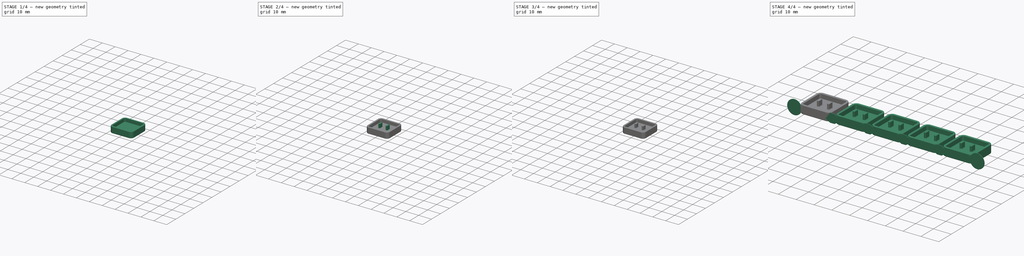
[diagram: build sequence overview — one tinted view per stage of 4, left to right]
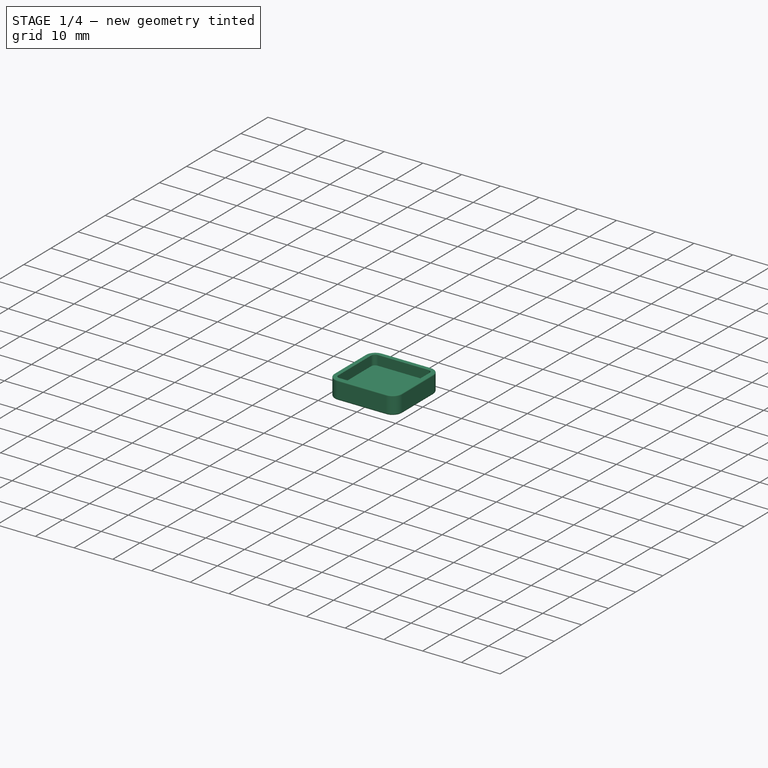
[diagram: stage 1 of 4 — iso view after this stage's code; geometry added in this stage tinted green]
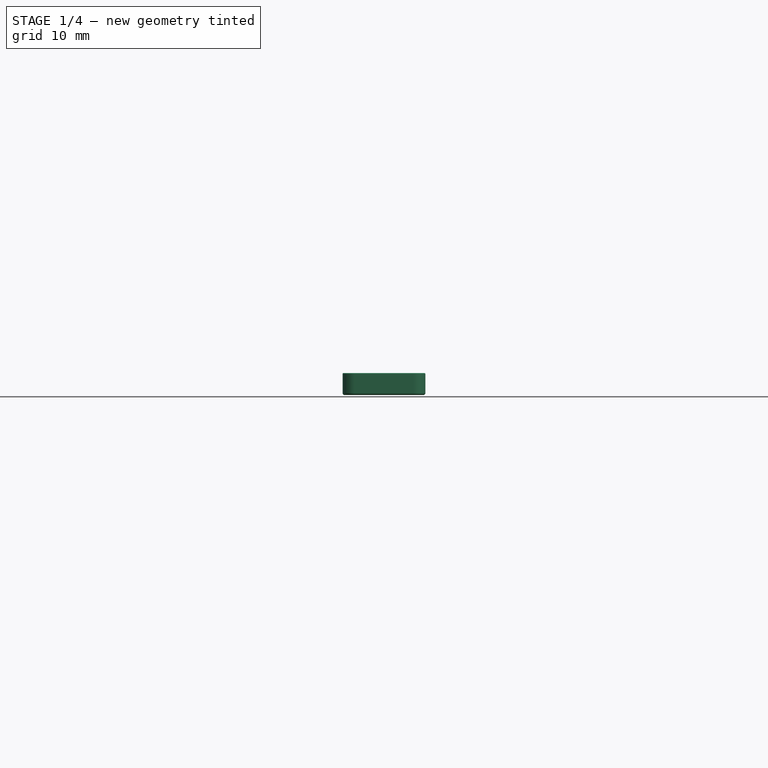
[diagram: stage 1 of 4 — front view after this stage's code; geometry added in this stage tinted green]
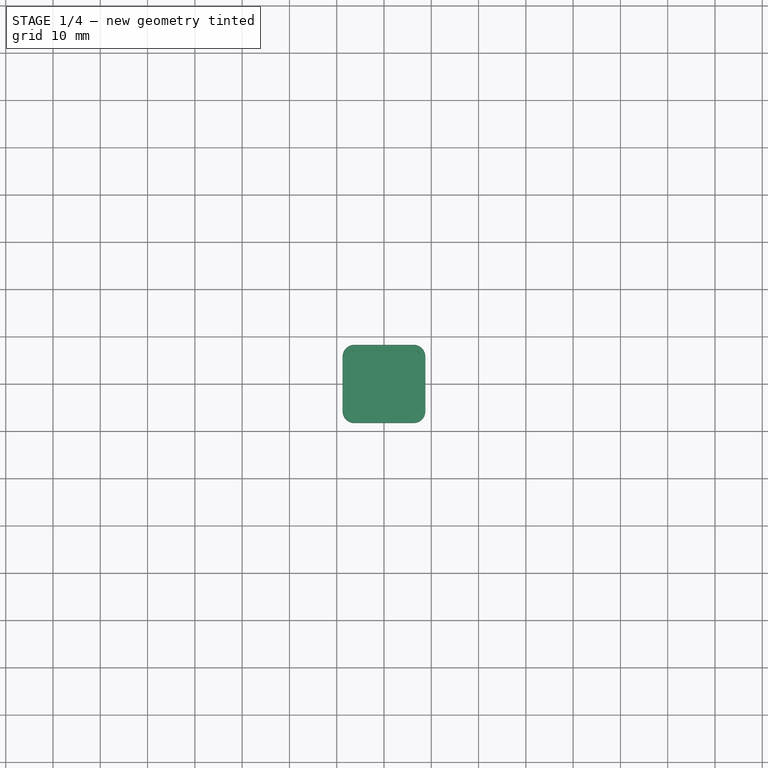
[diagram: stage 1 of 4 — top view after this stage's code; geometry added in this stage tinted green]
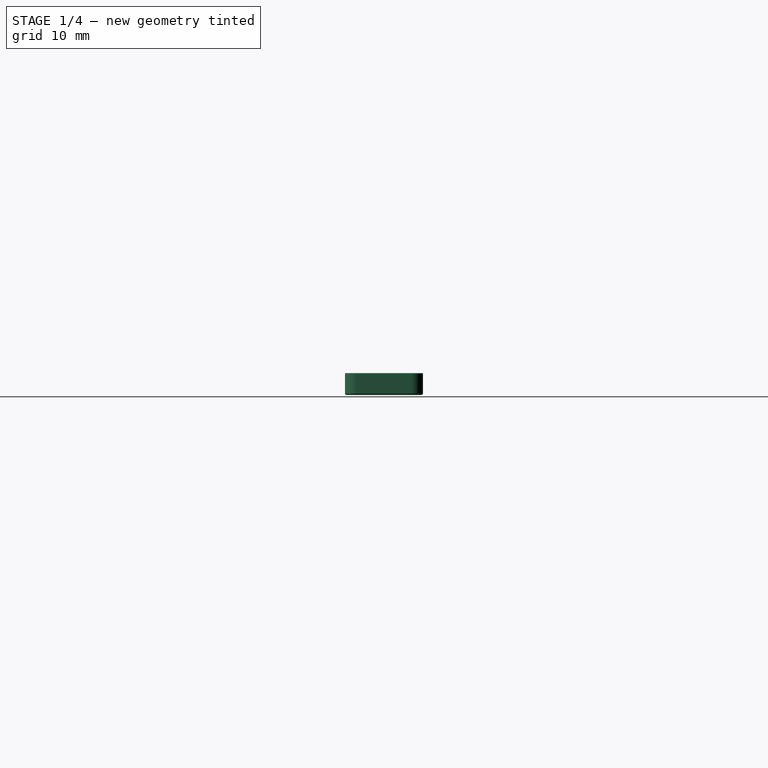
[diagram: stage 1 of 4 — right view after this stage's code; geometry added in this stage tinted green]
FCSTD DOCUMENT  (FreeCAD 1.0R39319 (Git))
Label: 1c_choc_x5
License: All rights reserved
LicenseURL: https://en.wikipedia.org/wiki/All_rights_reserved
objects: PartDesign::Fillet×7, Sketcher::SketchObject×6, PartDesign::Pad×5, PartDesign::Groove×1, PartDesign::LinearPattern×1, PartDesign::Body×1
note: 54 computed .brp shape members not serialized (recipe doc carries the construction recipe); baked Part::Feature solids carry a one-line shape summary decoded from their .brp

FEATURE [Sketcher::SketchObject] Sketch
  ArcFitTolerance = 1e-06
  AttachmentSupport = -> [XY_Plane]
  FullyConstrained = true
  MakeInternals = false
  MapMode = 5
  sketch-geometry (13):
    g0: LineSegment StartX=-6.25 StartY=-8.25 StartZ=0 EndX=6.25 EndY=-8.25 EndZ=0
    g1: LineSegment StartX=8.75 StartY=-5.75 StartZ=0 EndX=8.75 EndY=5.75 EndZ=0
    g2: LineSegment StartX=6.25 StartY=8.25 StartZ=0 EndX=-6.25 EndY=8.25 EndZ=0
    g3: LineSegment StartX=-8.75 StartY=5.75 StartZ=0 EndX=-8.75 EndY=-5.75 EndZ=0
    g4: GeomPoint [constr] X=0 Y=0 Z=0
    g5: ArcOfCircle CenterX=-6.25 CenterY=5.75 CenterZ=0 NormalX=0 NormalY=0 NormalZ=1 AngleXU=0 Radius=2.5 StartAngle=1.5708 EndAngle=3.14159
    g6: GeomPoint [constr] X=-8.75 Y=8.25 Z=0
    g7: ArcOfCircle CenterX=6.25 CenterY=5.75 CenterZ=0 NormalX=0 NormalY=0 NormalZ=1 AngleXU=0 Radius=2.5 StartAngle=3.664e-13 EndAngle=1.5708
    g8: GeomPoint [constr] X=8.75 Y=8.25 Z=0
    g9: ArcOfCircle CenterX=6.25 CenterY=-5.75 CenterZ=0 NormalX=0 NormalY=0 NormalZ=1 AngleXU=0 Radius=2.5 StartAngle=4.71239 EndAngle=6.28319
    g10: GeomPoint [constr] X=8.75 Y=-8.25 Z=0
    g11: ArcOfCircle CenterX=-6.25 CenterY=-5.75 CenterZ=0 NormalX=0 NormalY=0 NormalZ=1 AngleXU=0 Radius=2.5 StartAngle=3.14159 EndAngle=4.71239
    g12: GeomPoint [constr] X=-8.75 Y=-8.25 Z=0
  constraints (28):
    c: Horizontal(g0)
    c: Horizontal(g2)
    c: Vertical(g1)
    c: Vertical(g3)
    c: Symmetric(g8,g12,g4)
    c: Coincident(g4,g-1)
    c: DistanceX(g6,g8) = 17.5
    c: DistanceY(g12,g6) = 16.5
    c: PointOnObject(g6,g3)
    c: PointOnObject(g6,g2)
    c: Tangent(g3,g5) = -1.5708
    c: Tangent(g2,g5) = -1.5708
    c: PointOnObject(g8,g2)
    c: PointOnObject(g8,g1)
    c: Tangent(g2,g7) = -1.5708
    c: Tangent(g1,g7) = -1.5708
    c: PointOnObject(g10,g1)
    c: PointOnObject(g10,g0)
    c: Tangent(g1,g9) = -1.5708
    c: Tangent(g0,g9) = -1.5708
    c: PointOnObject(g12,g3)
    c: PointOnObject(g12,g0)
    c: Tangent(g3,g11) = -1.5708
    c: Tangent(g0,g11) = -1.5708
    c: Radius(g5) = 2.5
    c: Equal(g5,g7)
    c: Equal(g7,g9)
    c: Equal(g9,g11)
FEATURE [PartDesign::Pad] Pad
  Direction = (0,0,1)
  Length = 2.15
  Length2 = 10
  Profile = -> Sketch
  ReferenceAxis = -> Sketch [N_Axis]
  Refine = true
  Suppressed = false
  Type = 0
FEATURE [Sketcher::SketchObject] Sketch001
  ArcFitTolerance = 1e-06
  AttachmentSupport = -> [Pad]
  ExternalGeometry = -> [Pad]
  FullyConstrained = true
  MakeInternals = false
  MapMode = 5
  Placement = pos=(0,0,2.15) rot=(0,0,1;0rad)
  sketch-geometry (21):
    g0: LineSegment StartX=-8.75 StartY=-5.75 StartZ=0 EndX=-8.75 EndY=5.75 EndZ=0
    g1: LineSegment StartX=-6.25 StartY=8.25 StartZ=0 EndX=6.25 EndY=8.25 EndZ=0
    g2: LineSegment StartX=8.75 StartY=5.75 StartZ=0 EndX=8.75 EndY=-5.75 EndZ=0
    g3: LineSegment StartX=6.25 StartY=-8.25 StartZ=0 EndX=-6.25 EndY=-8.25 EndZ=0
    g4: ArcOfCircle CenterX=-6.25 CenterY=-5.75 CenterZ=0 NormalX=0 NormalY=0 NormalZ=1 AngleXU=0 Radius=2.5 StartAngle=3.14159 EndAngle=4.71239
    g5: ArcOfCircle CenterX=-6.25 CenterY=5.75 CenterZ=0 NormalX=0 NormalY=0 NormalZ=1 AngleXU=0 Radius=2.5 StartAngle=1.5708 EndAngle=3.14159
    g6: ArcOfCircle CenterX=6.25 CenterY=5.75 CenterZ=0 NormalX=0 NormalY=0 NormalZ=1 AngleXU=0 Radius=2.5 StartAngle=0 EndAngle=1.5708
    g7: ArcOfCircle CenterX=6.25 CenterY=-5.75 CenterZ=0 NormalX=0 NormalY=0 NormalZ=1 AngleXU=0 Radius=2.5 StartAngle=4.71239 EndAngle=6.28319
    g8: LineSegment StartX=-6.55 StartY=-7.05 StartZ=0 EndX=6.55 EndY=-7.05 EndZ=0
    g9: LineSegment StartX=7.55 StartY=-6.05 StartZ=0 EndX=7.55 EndY=6.05 EndZ=0
    g10: LineSegment StartX=6.55 StartY=7.05 StartZ=0 EndX=-6.55 EndY=7.05 EndZ=0
    g11: LineSegment StartX=-7.55 StartY=6.05 StartZ=0 EndX=-7.55 EndY=-6.05 EndZ=0
    g12: GeomPoint [constr] X=0 Y=0 Z=0
    g13: ArcOfCircle CenterX=-6.55 CenterY=6.05 CenterZ=0 NormalX=0 NormalY=0 NormalZ=1 AngleXU=0 Radius=1 StartAngle=1.5708 EndAngle=3.14159
    g14: GeomPoint [constr] X=-7.55 Y=7.05 Z=0
    g15: ArcOfCircle CenterX=6.55 CenterY=6.05 CenterZ=0 NormalX=0 NormalY=0 NormalZ=1 AngleXU=0 Radius=1 StartAngle=6e-16 EndAngle=1.5708
    g16: GeomPoint [constr] X=7.55 Y=7.05 Z=0
    g17: ArcOfCircle CenterX=6.55 CenterY=-6.05 CenterZ=0 NormalX=0 NormalY=0 NormalZ=1 AngleXU=0 Radius=1 StartAngle=4.71239 EndAngle=6.28319
    g18: GeomPoint [constr] X=7.55 Y=-7.05 Z=0
    g19: ArcOfCircle CenterX=-6.55 CenterY=-6.05 CenterZ=0 NormalX=0 NormalY=0 NormalZ=1 AngleXU=0 Radius=1 StartAngle=3.14159 EndAngle=4.71239
    g20: GeomPoint [constr] X=-7.55 Y=-7.05 Z=0
  constraints (44):
    c: Coincident(g0,g-10)
    c: Coincident(g0,g-3)
    c: Coincident(g1,g-4)
    c: Coincident(g1,g-5)
    c: Coincident(g2,g-6)
    c: Coincident(g2,g-7)
    c: Coincident(g3,g-8)
    c: Coincident(g3,g-9)
    c: Coincident(g4,g0)
    c: Coincident(g5,g1)
    c: Coincident(g6,g2)
    c: Coincident(g7,g3)
    c: Tangent(g5,g0) = 1.5708
    c: Tangent(g6,g1) = 1.5708
    c: Tangent(g7,g2) = 1.5708
    c: Tangent(g4,g3) = 1.5708
    c: Horizontal(g8)
    c: Horizontal(g10)
    c: Vertical(g9)
    c: Vertical(g11)
    c: Symmetric(g16,g20,g12)
    c: Coincident(g12,g-1)
    c: Distance(g16,g1) = 1.2
    c: Distance(g14,g0) = 1.2
    c: PointOnObject(g14,g11)
    c: PointOnObject(g14,g10)
    c: Tangent(g11,g13) = -1.5708
    c: Tangent(g10,g13) = -1.5708
    c: PointOnObject(g16,g10)
    c: PointOnObject(g16,g9)
    c: Tangent(g10,g15) = -1.5708
    c: Tangent(g9,g15) = -1.5708
    c: PointOnObject(g18,g9)
    c: PointOnObject(g18,g8)
    c: Tangent(g9,g17) = -1.5708
    c: Tangent(g8,g17) = -1.5708
    c: PointOnObject(g20,g8)
    c: PointOnObject(g20,g11)
    c: Tangent(g8,g19) = -1.5708
    c: Tangent(g11,g19) = -1.5708
    c: Equal(g13,g15)
    c: Equal(g15,g17)
    c: Equal(g17,g19)
    c: Radius(g13) = 1
FEATURE [PartDesign::Pad] Pad001
  BaseFeature = -> Pad
  Direction = (0,0,1)
  Length = 2.5
  Length2 = 10
  Profile = -> Sketch001
  ReferenceAxis = -> Sketch001 [N_Axis]
  Refine = true
  Suppressed = false
  Type = 0
FEATURE [PartDesign::Fillet] Fillet
  Base = -> Pad001 [Edge1]
  BaseFeature = -> Pad001
  Radius = 0.4
  Refine = true
  SupportTransform = false
  Suppressed = false
  UseAllEdges = false
FEATURE [PartDesign::Fillet] Fillet001
  Base = -> Fillet [Edge26]
  BaseFeature = -> Fillet
  Radius = 0.2
  Refine = true
  SupportTransform = false
  Suppressed = false
  UseAllEdges = false
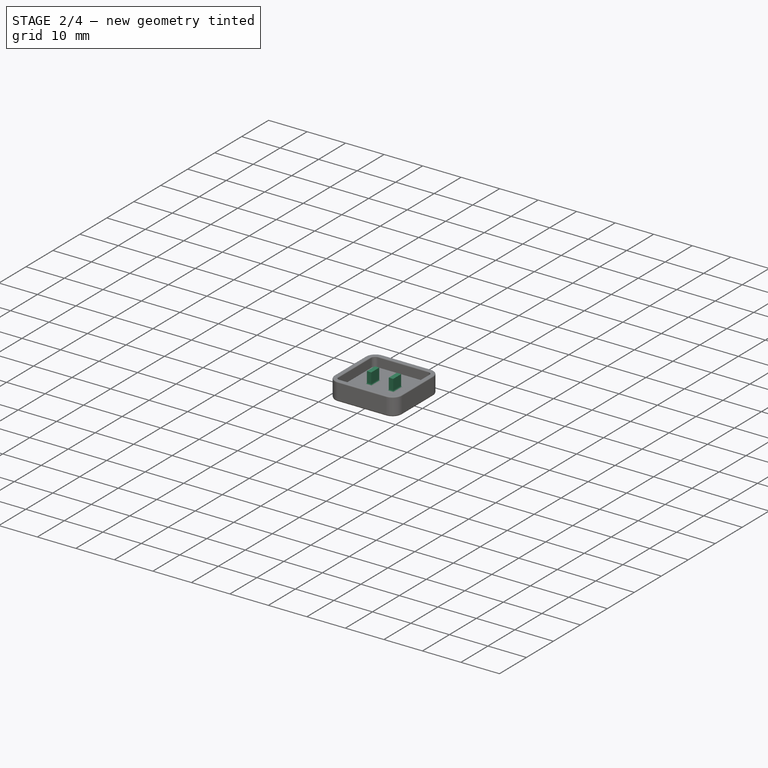
[diagram: stage 2 of 4 — iso view after this stage's code; geometry added in this stage tinted green]
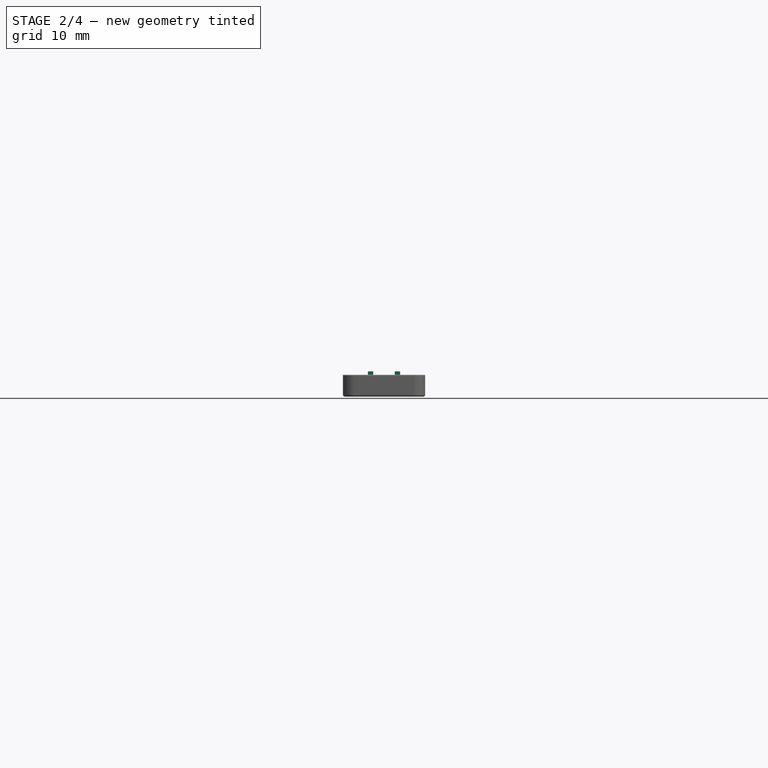
[diagram: stage 2 of 4 — front view after this stage's code; geometry added in this stage tinted green]
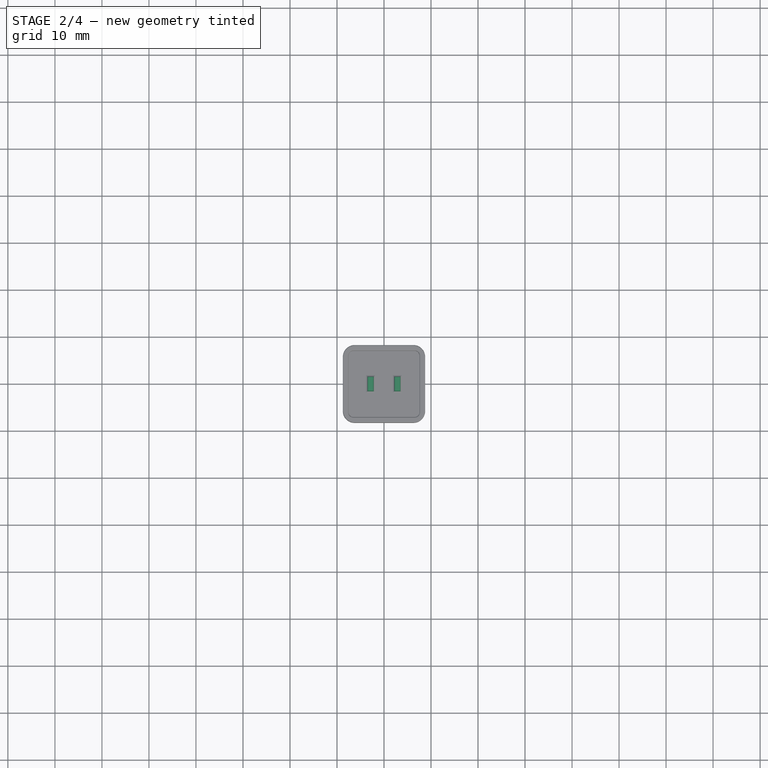
[diagram: stage 2 of 4 — top view after this stage's code; geometry added in this stage tinted green]
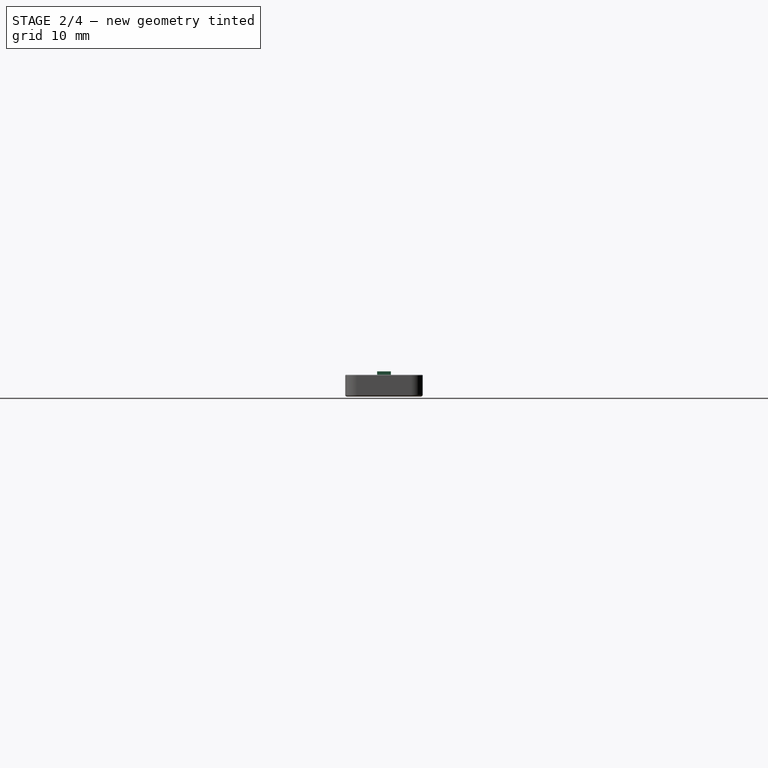
[diagram: stage 2 of 4 — right view after this stage's code; geometry added in this stage tinted green]
FEATURE [PartDesign::Fillet] Fillet002
  Base = -> Fillet001 [Edge30]
  BaseFeature = -> Fillet001
  Radius = 0.2
  Refine = true
  SupportTransform = false
  Suppressed = false
  UseAllEdges = false
FEATURE [Sketcher::SketchObject] Sketch002
  ArcFitTolerance = 1e-06
  AttachmentSupport = -> [Fillet002]
  ExternalGeometry = -> [Fillet002]
  FullyConstrained = true
  MakeInternals = false
  MapMode = 5
  Placement = pos=(0,0,2.15) rot=(0,0,1;0rad)
  sketch-geometry (8):
    g0: LineSegment StartX=-3.425 StartY=1.475 StartZ=0 EndX=-3.425 EndY=-1.475 EndZ=0
    g1: LineSegment StartX=-3.425 StartY=-1.475 StartZ=0 EndX=-2.275 EndY=-1.475 EndZ=0
    g2: LineSegment StartX=-2.275 StartY=-1.475 StartZ=0 EndX=-2.275 EndY=1.475 EndZ=0
    g3: LineSegment StartX=-2.275 StartY=1.475 StartZ=0 EndX=-3.425 EndY=1.475 EndZ=0
    g4: LineSegment StartX=2.275 StartY=1.475 StartZ=0 EndX=2.275 EndY=-1.475 EndZ=0
    g5: LineSegment StartX=2.275 StartY=-1.475 StartZ=0 EndX=3.425 EndY=-1.475 EndZ=0
    g6: LineSegment StartX=3.425 StartY=-1.475 StartZ=0 EndX=3.425 EndY=1.475 EndZ=0
    g7: LineSegment StartX=3.425 StartY=1.475 StartZ=0 EndX=2.275 EndY=1.475 EndZ=0
  constraints (20):
    c: Coincident(g0,g1)
    c: Coincident(g1,g2)
    c: Coincident(g2,g3)
    c: Coincident(g3,g0)
    c: Vertical(g0)
    c: Horizontal(g1)
    c: Coincident(g4,g5)
    c: Coincident(g5,g6)
    c: Coincident(g6,g7)
    c: Coincident(g7,g4)
    c: Vertical(g4)
    c: Vertical(g6)
    c: Tangent(g3,g7)
    c: Tangent(g1,g5)
    c: Equal(g3,g7)
    c: Distance(g4,g2) = 4.55
    c: Distance(g3,g3) = 1.15
    c: Symmetric(g2,g4,g-2)
    c: Symmetric(g2,g1,g-1)
    c: DistanceY(g0,g0) = 2.95
FEATURE [PartDesign::Pad] Pad002
  BaseFeature = -> Fillet002
  Direction = (0,0,1)
  Length = 3.2
  Length2 = 10
  Profile = -> Sketch002
  ReferenceAxis = -> Sketch002 [N_Axis]
  Refine = true
  Suppressed = false
  Type = 0
FEATURE [PartDesign::Fillet] Fillet003
  Base = -> Pad002 [Edge85,Edge88,Edge87,Edge86,Edge81,Edge82,Edge83,Edge84]
  BaseFeature = -> Pad002
  Radius = 0.5
  Refine = true
  SupportTransform = false
  Suppressed = false
  UseAllEdges = false
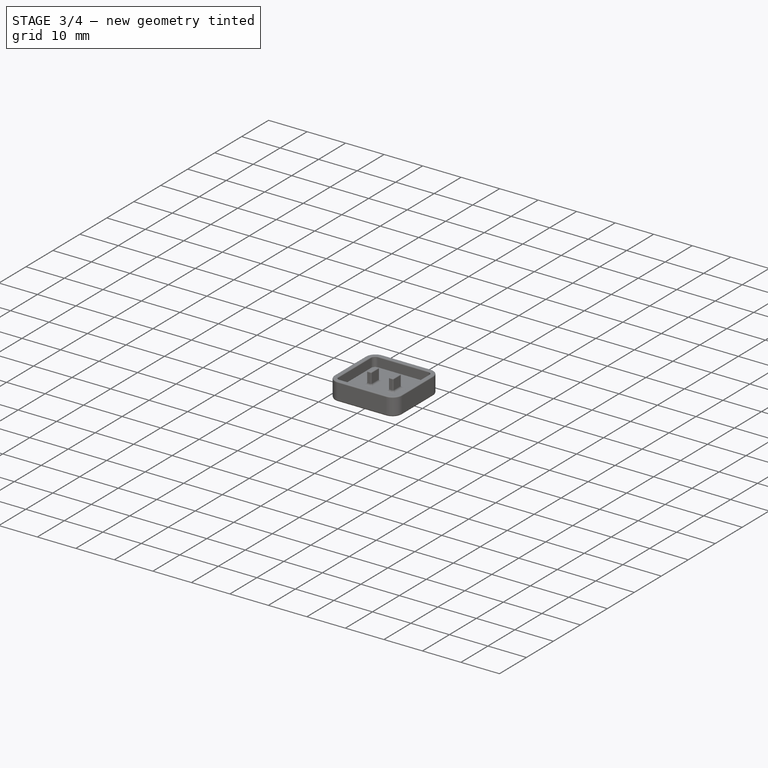
[diagram: stage 3 of 4 — iso view after this stage's code; geometry added in this stage tinted green]
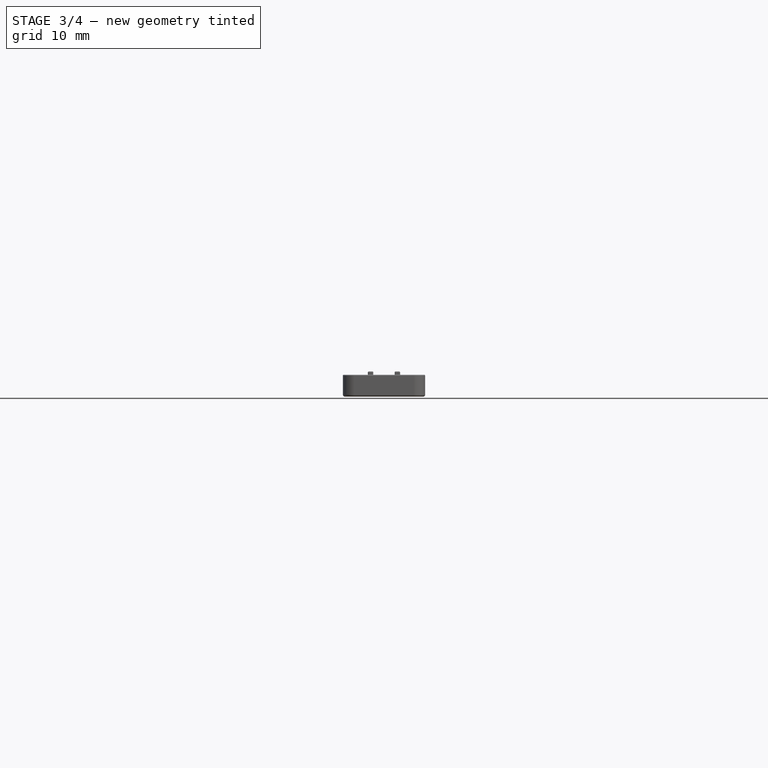
[diagram: stage 3 of 4 — front view after this stage's code; geometry added in this stage tinted green]
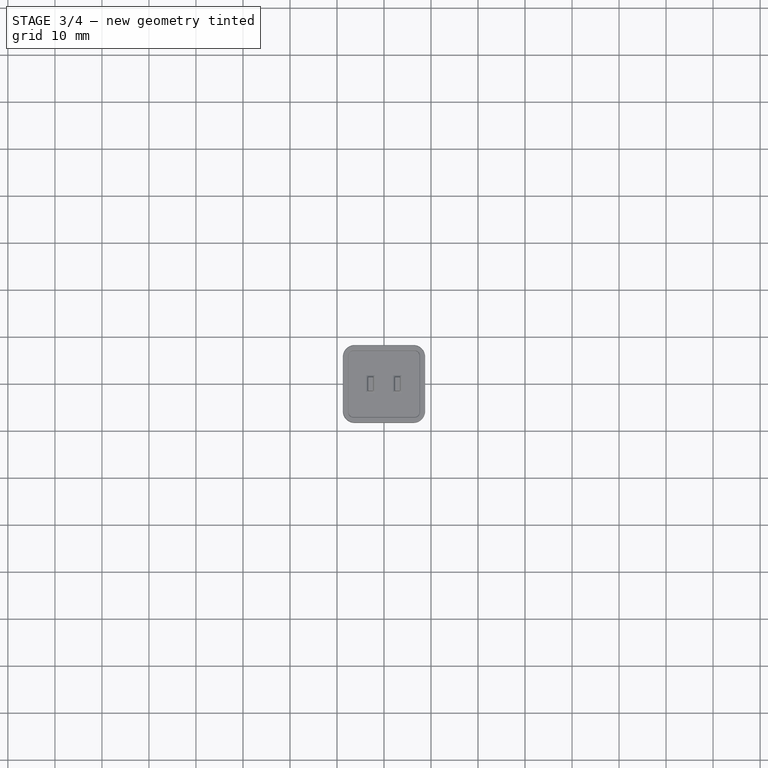
[diagram: stage 3 of 4 — top view after this stage's code; geometry added in this stage tinted green]
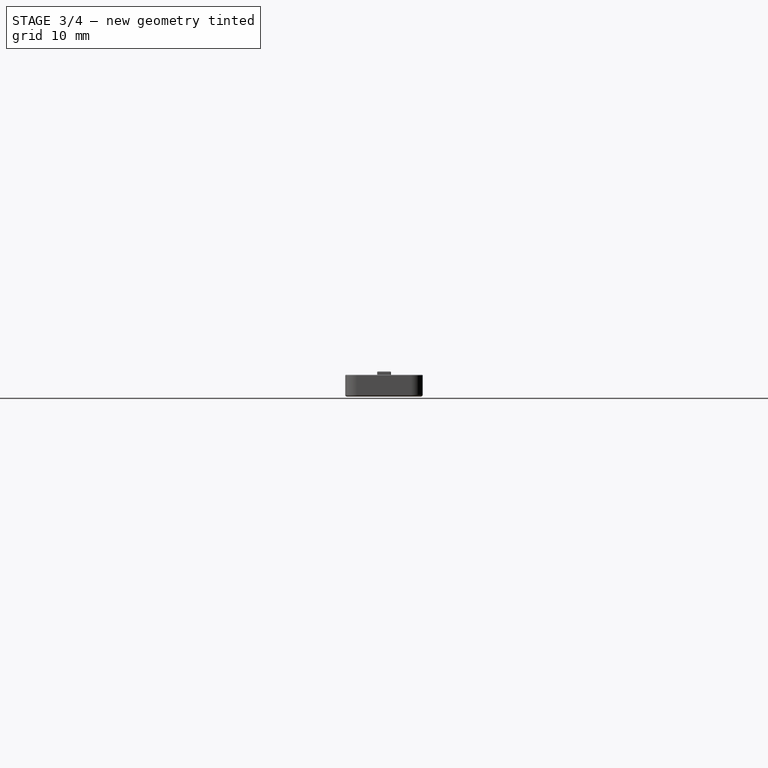
[diagram: stage 3 of 4 — right view after this stage's code; geometry added in this stage tinted green]
FEATURE [PartDesign::Fillet] Fillet004
  Base = -> Fillet003 [Edge49,Edge52,Edge51,Edge55,Edge75,Edge79,Edge73,Edge76]
  BaseFeature = -> Fillet003
  Radius = 0.2
  Refine = true
  SupportTransform = false
  Suppressed = false
  UseAllEdges = false
FEATURE [PartDesign::Fillet] Fillet005
  Base = -> Fillet004 [Edge33,Edge106]
  BaseFeature = -> Fillet004
  Radius = 0.2
  Refine = true
  SupportTransform = false
  Suppressed = false
  UseAllEdges = false
FEATURE [Sketcher::SketchObject] Sketch003
  ArcFitTolerance = 1e-06
  AttachmentSupport = -> [XZ_Plane]
  FullyConstrained = true
  MakeInternals = false
  MapMode = 5
  Placement = pos=(0,0,0) rot=(1,0,0;1.5708rad)
  sketch-geometry (2):
    g0: ArcOfCircle CenterX=0 CenterY=-14.4 CenterZ=0 NormalX=0 NormalY=0 NormalZ=1 AngleXU=0 Radius=15.8 StartAngle=4.71239 EndAngle=7.85398
    g1: LineSegment StartX=-2.9e-15 StartY=1.4 StartZ=0 EndX=-2.9e-15 EndY=-30.2 EndZ=0
  constraints (7):
    c: PointOnObject(g0,g-2)
    c: DistanceY(g0,g-1) = 14.4
    c: Diameter(g0) = 31.6
    c: PointOnObject(g1,g-2)
    c: Vertical(g1)
    c: Coincident(g0,g1)
    c: Coincident(g0,g1)
FEATURE [PartDesign::Groove] Groove
  Angle = 360
  Angle2 = 60
  Axis = (0,2e-16,1)
  Base = (0,0,0)
  BaseFeature = -> Fillet005
  Profile = -> Sketch003
  ReferenceAxis = -> Sketch003 [V_Axis]
  Refine = true
  Suppressed = false
  Type = 0
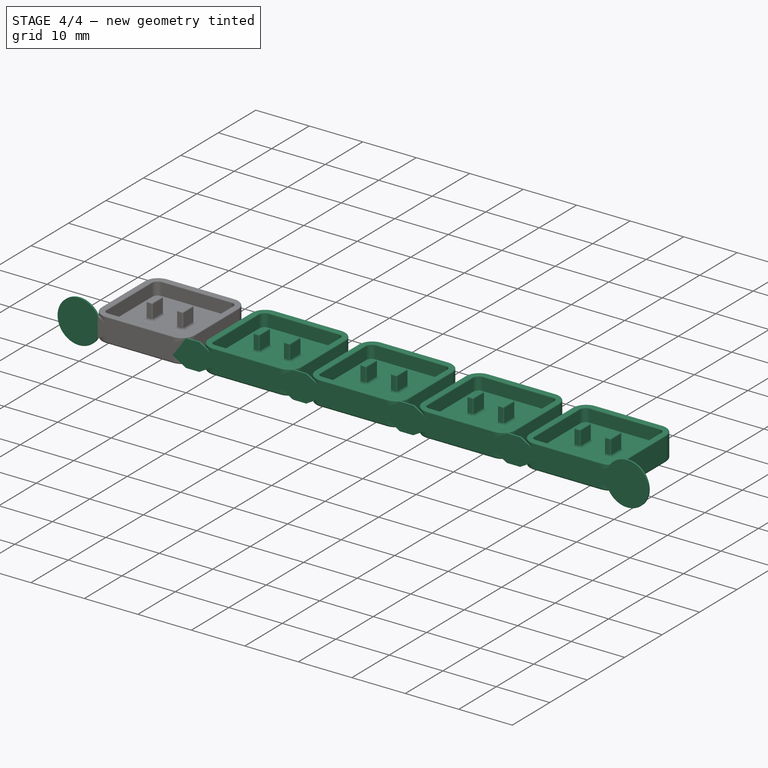
[diagram: stage 4 of 4 — iso view after this stage's code; geometry added in this stage tinted green]
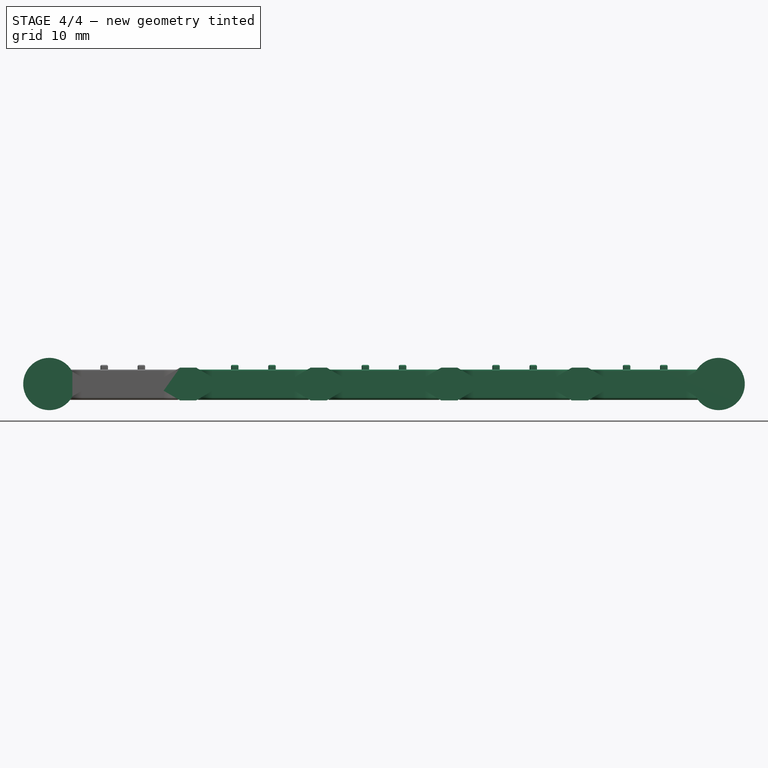
[diagram: stage 4 of 4 — front view after this stage's code; geometry added in this stage tinted green]
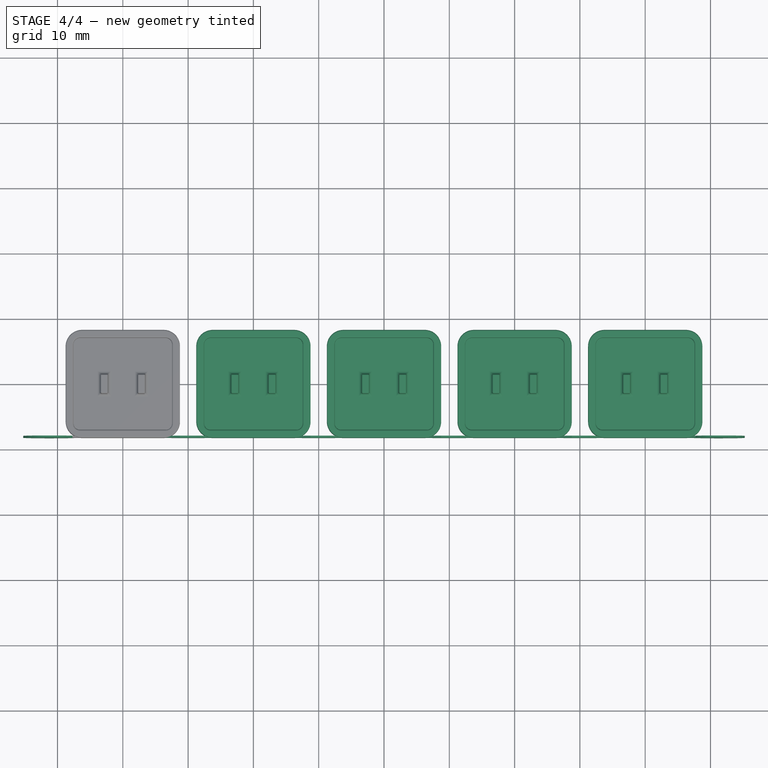
[diagram: stage 4 of 4 — top view after this stage's code; geometry added in this stage tinted green]
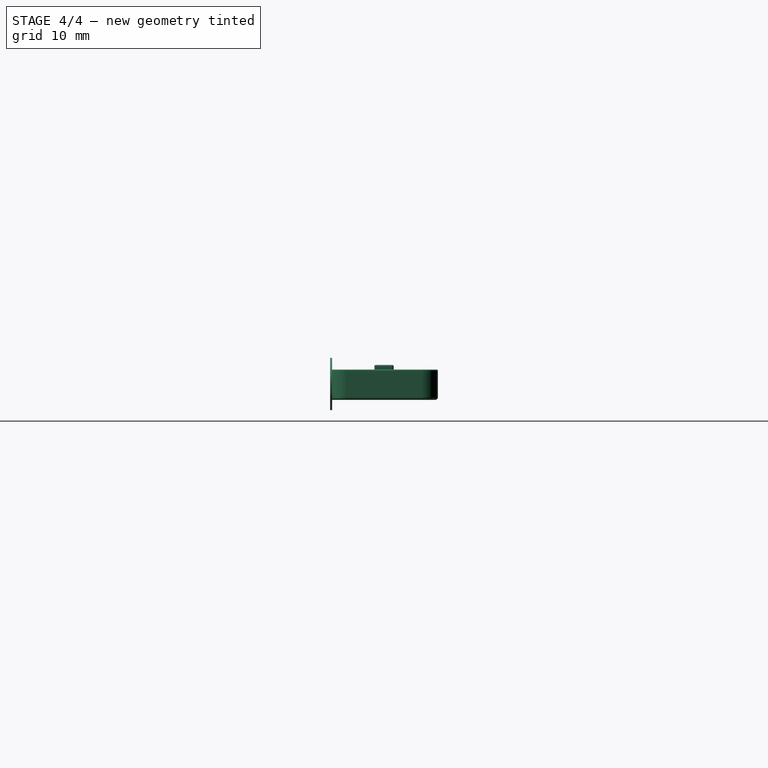
[diagram: stage 4 of 4 — right view after this stage's code; geometry added in this stage tinted green]
FEATURE [PartDesign::Fillet] Fillet006
  Base = -> Groove [Edge209]
  BaseFeature = -> Groove
  Radius = 0.4
  Refine = true
  SupportTransform = false
  Suppressed = false
  UseAllEdges = false
FEATURE [Sketcher::SketchObject] Sketch004
  ArcFitTolerance = 1e-06
  AttachmentSupport = -> [Fillet006]
  ExternalGeometry = -> [Fillet006]
  FullyConstrained = false
  MakeInternals = false
  MapMode = 5
  Placement = pos=(0,-8.25,0) rot=(1,0,0;1.5708rad)
  sketch-geometry (16):
    g0: LineSegment StartX=6.25 StartY=3.45 StartZ=0 EndX=8.75 EndY=4.925 EndZ=0
    g1: LineSegment StartX=8.75 StartY=4.925 StartZ=0 EndX=11.25 EndY=4.925 EndZ=0
    g2: LineSegment StartX=11.25 StartY=4.925 StartZ=0 EndX=13.75 EndY=3.45 EndZ=0
    g3: LineSegment StartX=13.75 StartY=3.45 StartZ=0 EndX=13.75 EndY=1.4 EndZ=0
    g4: LineSegment StartX=13.75 StartY=1.4 StartZ=0 EndX=11.25 EndY=-0.075 EndZ=0
    g5: LineSegment StartX=11.25 StartY=-0.075 StartZ=0 EndX=8.75 EndY=-0.075 EndZ=0
    g6: LineSegment StartX=8.75 StartY=-0.075 StartZ=0 EndX=6.25 EndY=1.4 EndZ=0
    g7: LineSegment StartX=6.25 StartY=1.4 StartZ=0 EndX=6.25 EndY=3.45 EndZ=0
    g8: LineSegment StartX=-6.25 StartY=3.45 StartZ=0 EndX=-8.75 EndY=4.925 EndZ=0
    g9: LineSegment StartX=-8.75 StartY=4.925 StartZ=0 EndX=-11.25 EndY=4.925 EndZ=0
    g10: LineSegment StartX=-11.25 StartY=4.925 StartZ=0 EndX=-13.75 EndY=3.45 EndZ=0
    g11: LineSegment StartX=-13.75 StartY=3.45 StartZ=0 EndX=-13.75 EndY=1.4 EndZ=0
    g12: LineSegment StartX=-13.75 StartY=1.4 StartZ=0 EndX=-11.25 EndY=-0.075 EndZ=0
    g13: LineSegment StartX=-11.25 StartY=-0.075 StartZ=0 EndX=-8.75 EndY=-0.075 EndZ=0
    g14: LineSegment StartX=-8.75 StartY=-0.075 StartZ=0 EndX=-6.25 EndY=1.4 EndZ=0
    g15: LineSegment StartX=-6.25 StartY=1.4 StartZ=0 EndX=-6.25 EndY=3.45 EndZ=0
  constraints (40):
    c: PointOnObject(g0,g-3)
    c: Coincident(g0,g1)
    c: Horizontal(g1)
    c: Coincident(g1,g2)
    c: Coincident(g2,g3)
    c: Coincident(g3,g4)
    c: Coincident(g4,g5)
    c: Horizontal(g5)
    c: Coincident(g5,g6)
    c: PointOnObject(g6,g-3)
    c: Coincident(g6,g7)
    c: Coincident(g7,g0)
    c: Equal(g0,g6)
    c: Equal(g2,g4)
    c: Vertical(g0,g5)
    c: Vertical(g1,g4)
    c: Vertical(g3)
    c: Distance(g3,g-6) = 20
    c: Distance(g0,g-4) = 1
    c: Distance(g6,g-5) = 1
    c: Equal(g7,g3)
    c: Distance(g5,g1) = 5
    c: Equal(g0,g2)
    c: DistanceX(g1,g1) = 2.5
    c: Coincident(g8,g9)
    c: Horizontal(g9)
    c: Coincident(g9,g10)
    c: Coincident(g10,g11)
    c: Coincident(g11,g12)
    c: Coincident(g12,g13)
    c: Horizontal(g13)
    c: Coincident(g13,g14)
    c: Coincident(g14,g15)
    c: Coincident(g15,g8)
    c: Equal(g8,g14)
    c: Equal(g10,g12)
    c: Vertical(g11)
    c: Equal(g15,g11)
    c: Distance(g13,g9) = 5
    c: Equal(g8,g10)
FEATURE [PartDesign::Pad] Pad003
  BaseFeature = -> Fillet006
  Direction = (0,-1,2e-16)
  Length = 0.3
  Length2 = 10
  Profile = -> Sketch004
  ReferenceAxis = -> Sketch004 [N_Axis]
  Refine = true
  Reversed = true
  Suppressed = false
  Type = 0
FEATURE [PartDesign::LinearPattern] LinearPattern
  BaseFeature = -> Pad003
  Direction = -> X_Axis
  Length = 80
  Mode = 1
  Occurrences = 5
  Offset = 20
  Refine = true
  Suppressed = false
  TransformMode = 1
FEATURE [Sketcher::SketchObject] Sketch005
  ArcFitTolerance = 1e-06
  AttachmentSupport = -> [LinearPattern]
  ExternalGeometry = -> [LinearPattern]
  FullyConstrained = true
  MakeInternals = false
  MapMode = 5
  Placement = pos=(0,-8.25,0) rot=(1,0,0;1.5708rad)
  sketch-geometry (4):
    g0: LineSegment [constr] StartX=-11.25 StartY=4.925 StartZ=0 EndX=-11.25 EndY=-0.075 EndZ=0
    g1: LineSegment [constr] StartX=91.25 StartY=4.925 StartZ=0 EndX=91.25 EndY=-0.075 EndZ=0
    g2: Circle CenterX=-11.25 CenterY=2.425 CenterZ=0 NormalX=0 NormalY=0 NormalZ=1 AngleXU=0 Radius=4
    g3: Circle CenterX=91.25 CenterY=2.425 CenterZ=0 NormalX=0 NormalY=0 NormalZ=1 AngleXU=0 Radius=4
  constraints (8):
    c: Coincident(g0,g-6)
    c: Coincident(g0,g-3)
    c: Coincident(g1,g-4)
    c: Coincident(g1,g-5)
    c: Symmetric(g0,g0,g2)
    c: Symmetric(g1,g1,g3)
    c: Equal(g3,g2)
    c: Diameter(g2) = 8
FEATURE [PartDesign::Pad] Pad004
  BaseFeature = -> LinearPattern
  Direction = (0,-1,2e-16)
  Length = 0.3
  Length2 = 10
  Profile = -> Sketch005
  ReferenceAxis = -> Sketch005 [N_Axis]
  Refine = true
  Reversed = true
  Suppressed = false
  Type = 0
FEATURE [PartDesign::Body] Body
  AllowCompound = false
  Group = -> [Sketch,Pad,Sketch001,Pad001,Fillet,Fillet001,Fillet002,Sketch002,Pad002,Fillet003,Fillet004,Fillet005,Sketch003,Groove,Fillet006,Sketch004,Pad003,LinearPattern,Sketch005,Pad004]
  Origin = -> Origin
  Tip = -> Pad004
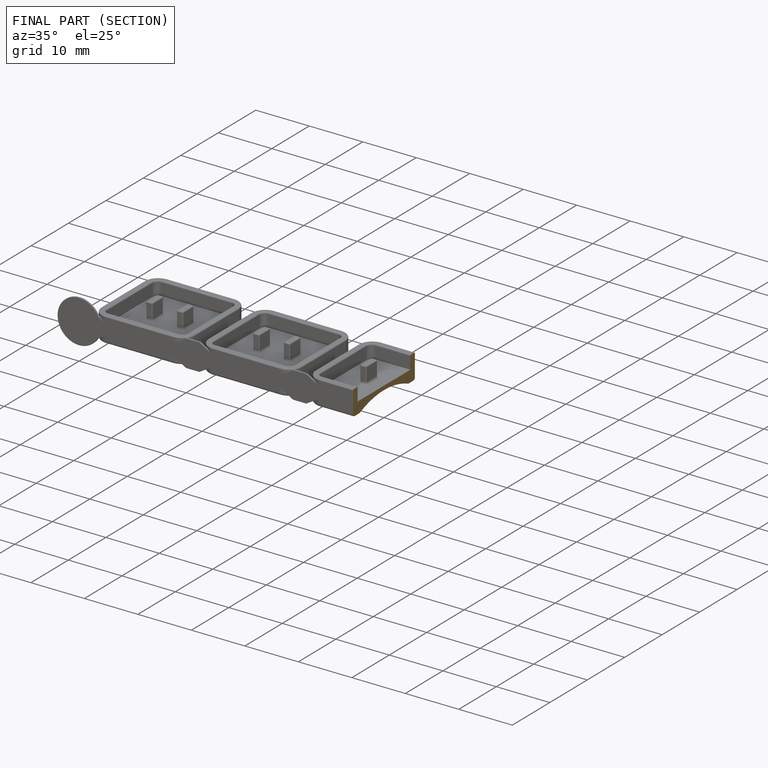
[diagram: finished part — half-section view (interior)]
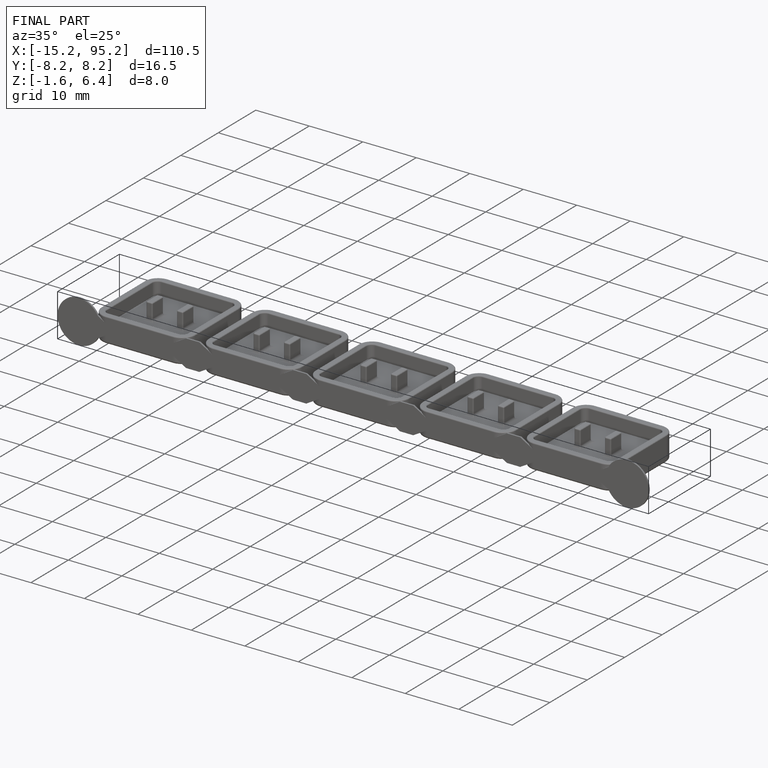
[diagram: finished part — iso view with bounding-box wireframe]
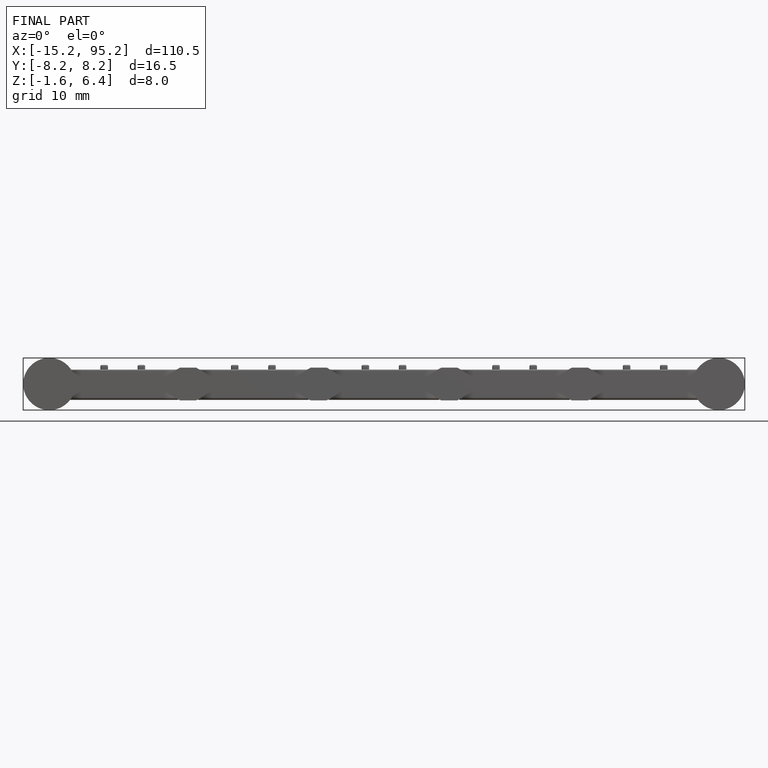
[diagram: finished part — front view with bounding-box wireframe]
